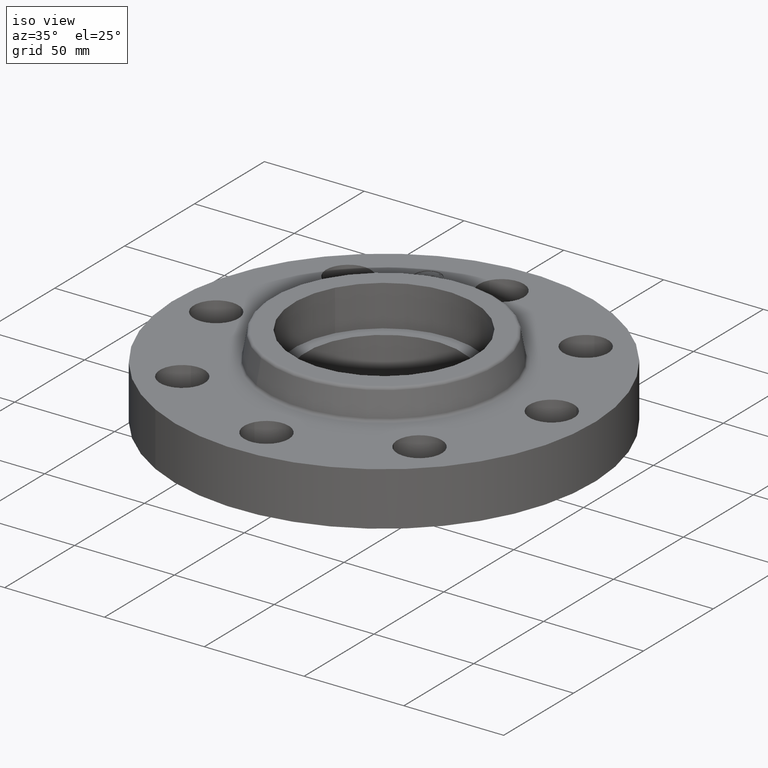
[diagram: clean part render]
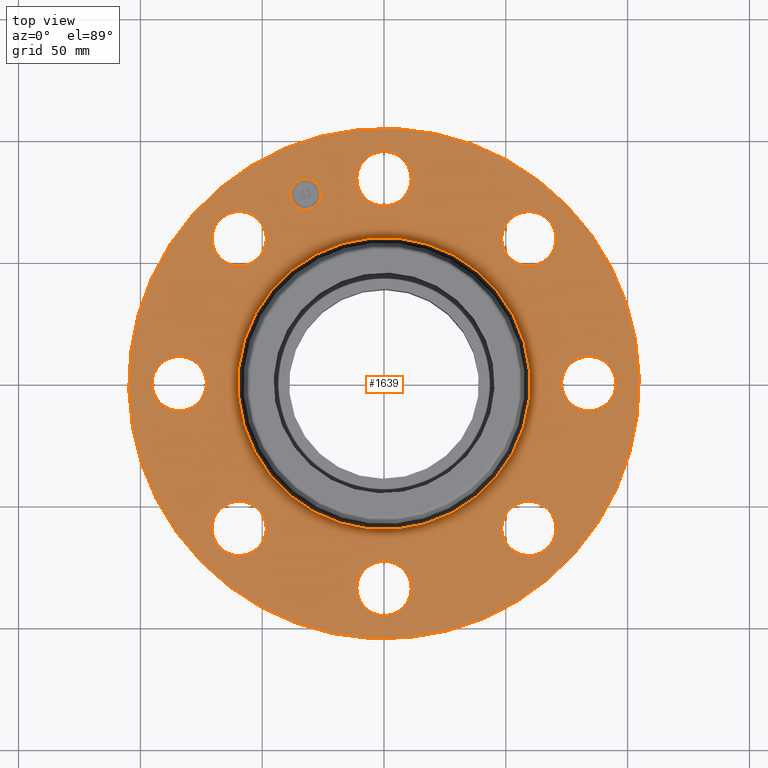
[diagram: tour spotlight — one face highlighted and labeled with its STEP entity id]
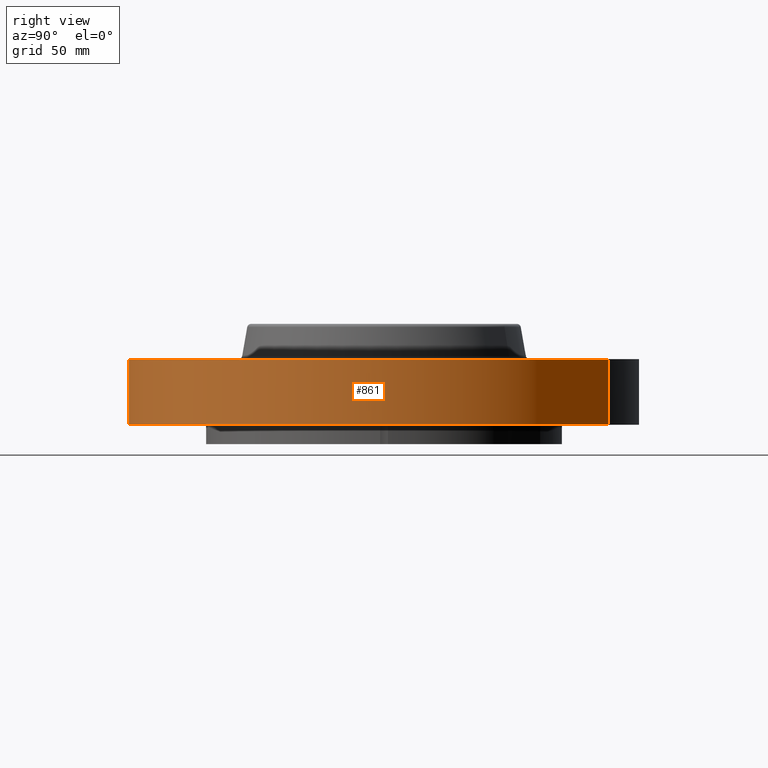
[diagram: tour spotlight — one face highlighted and labeled with its STEP entity id]
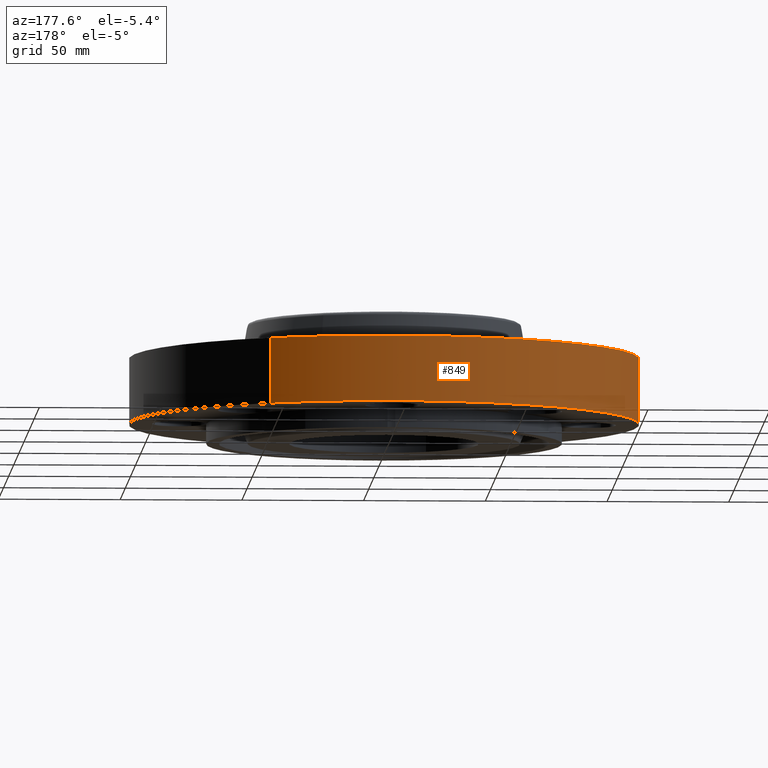
[diagram: tour spotlight — one face highlighted and labeled with its STEP entity id]
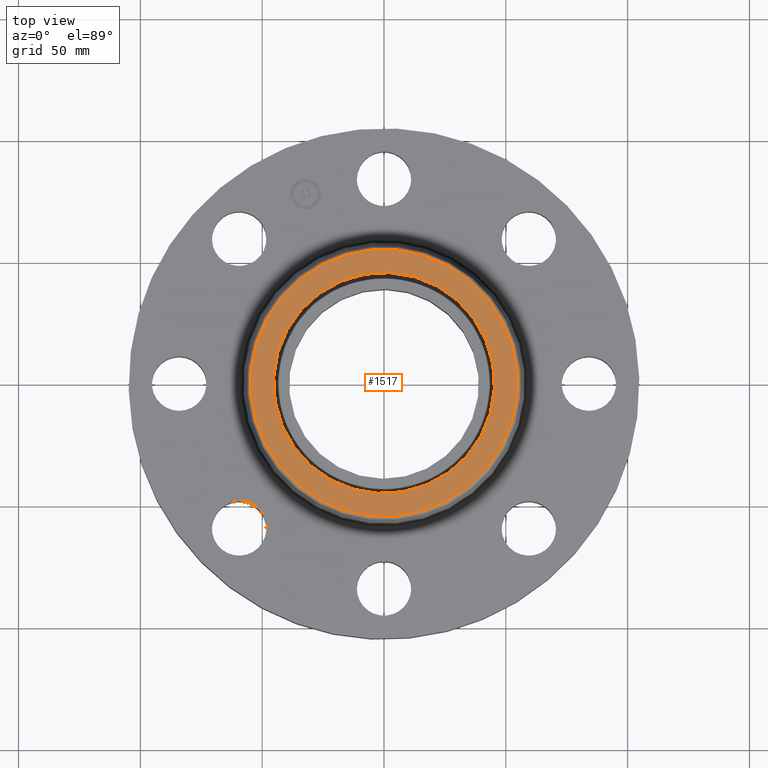
[diagram: tour spotlight — one face highlighted and labeled with its STEP entity id]
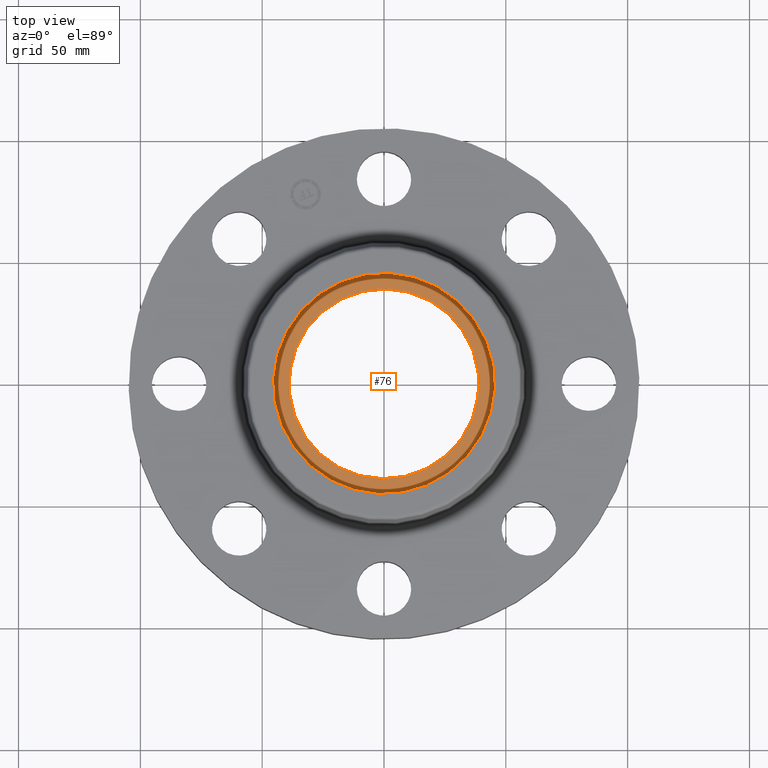
[diagram: tour spotlight — one face highlighted and labeled with its STEP entity id]
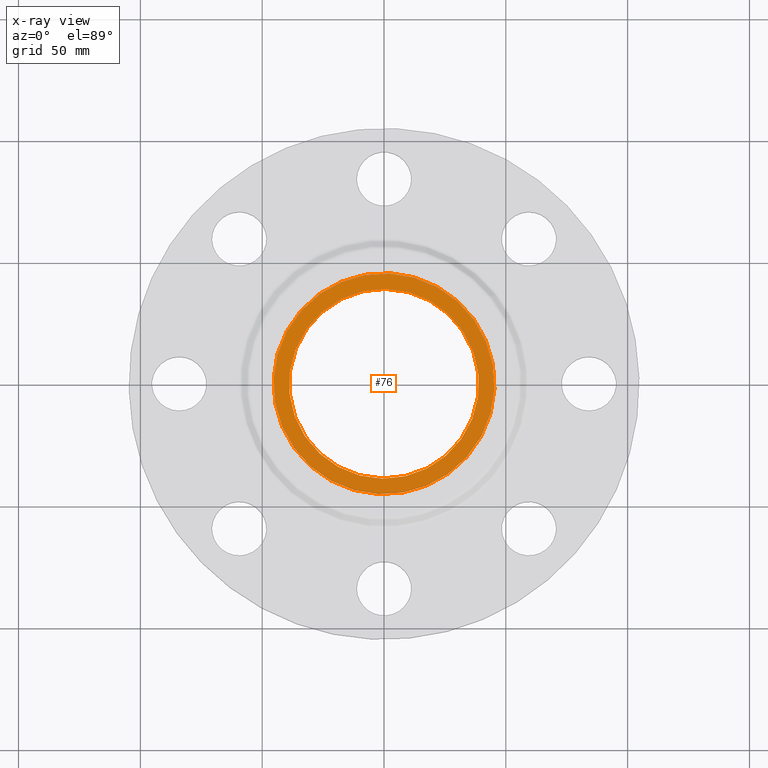
[diagram: x-ray of the same camera — body ghosted, this tour face saturated]
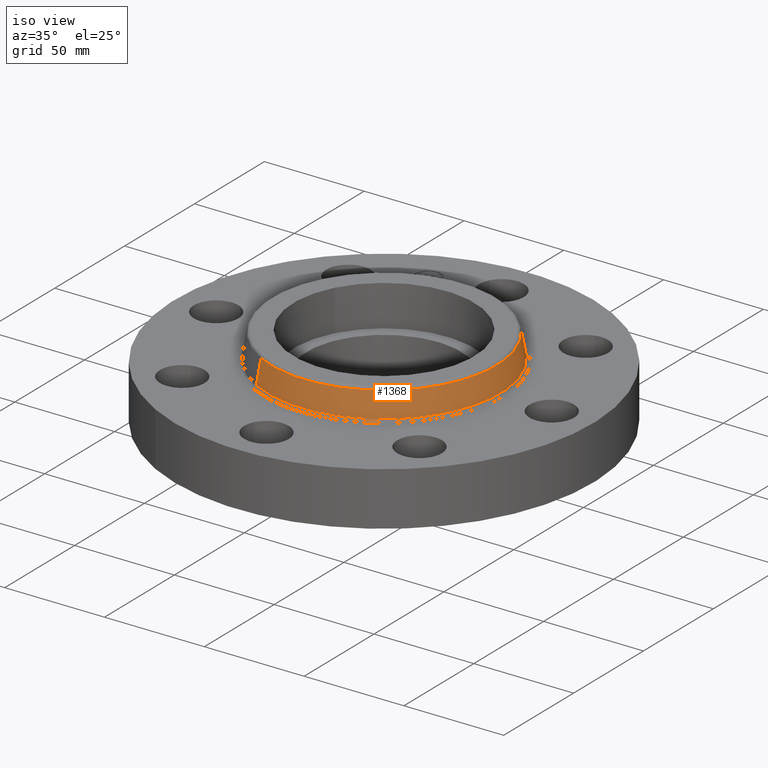
[diagram: tour spotlight — one face highlighted and labeled with its STEP entity id]
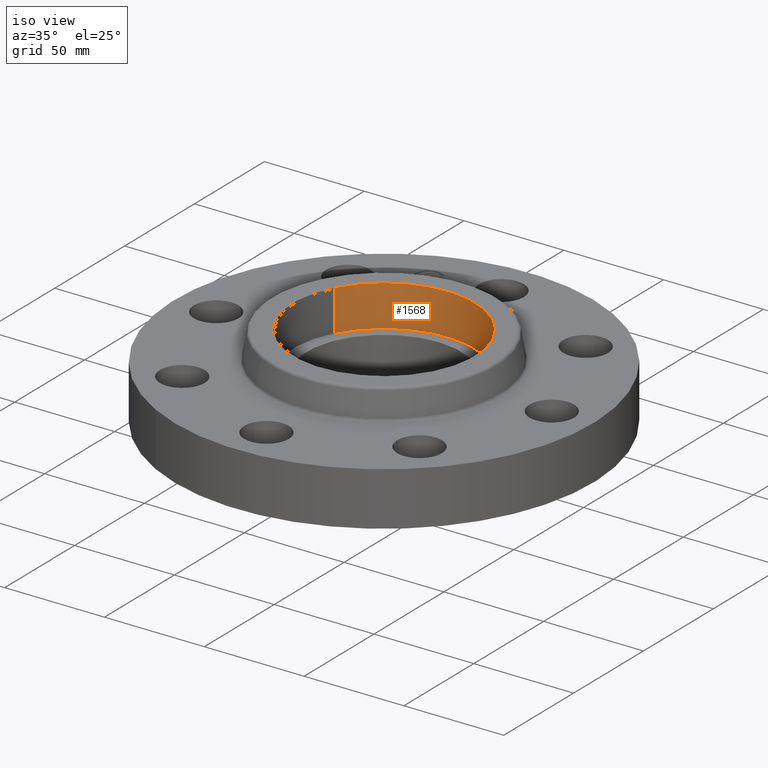
[diagram: tour spotlight — one face highlighted and labeled with its STEP entity id]
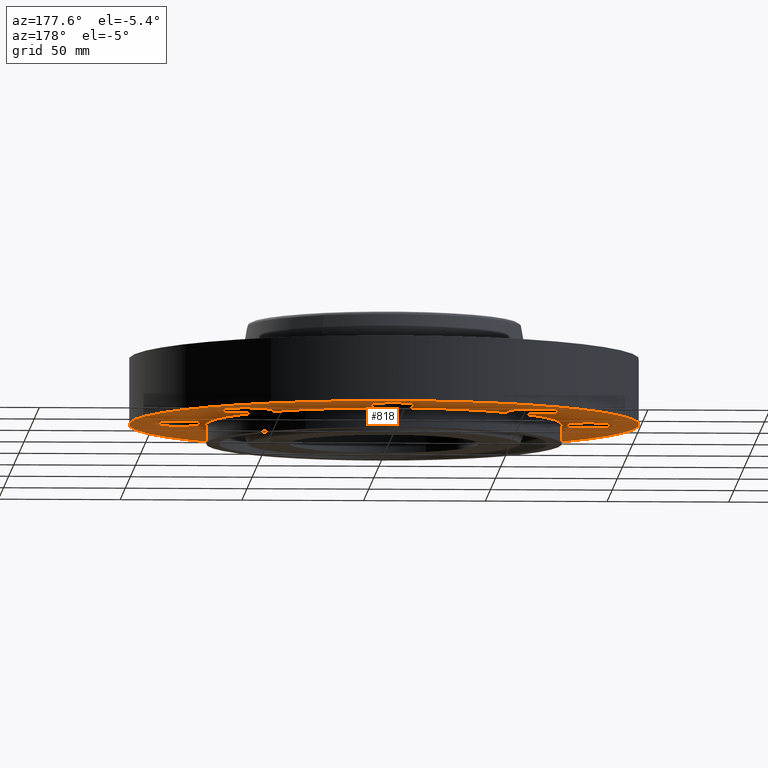
[diagram: tour spotlight — one face highlighted and labeled with its STEP entity id]
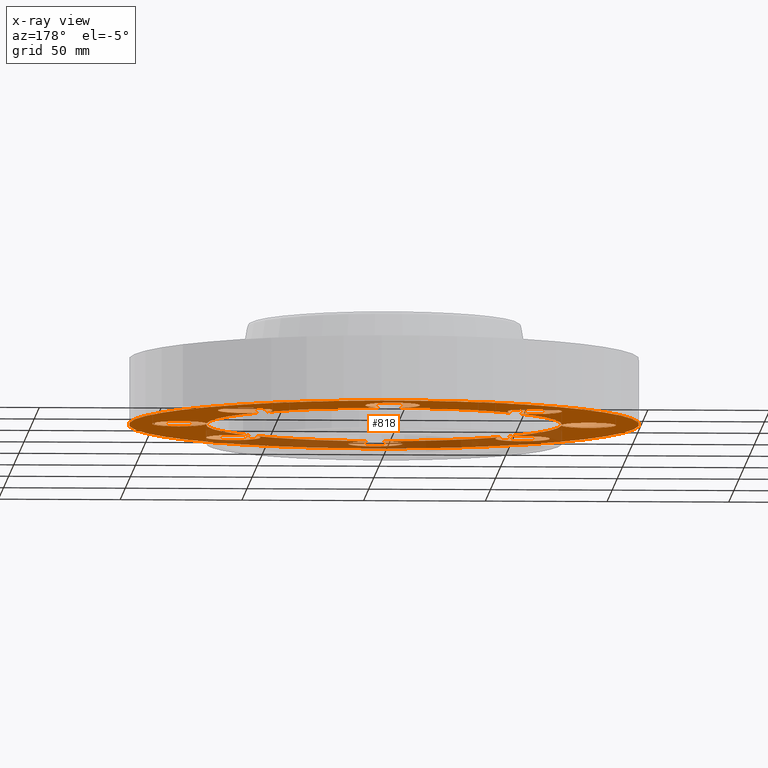
[diagram: x-ray of the same camera — body ghosted, this tour face saturated]
A machine part: a face-by-face anatomy tour. The part has 438 B-rep faces; the first image is the clean iso view, then the 8 largest visible faces are spotlighted one at a time (largest first), each with its STEP entity span.

Face 1 — top view, entity #1639. In plain terms, the highlighted planar face has unit normal (0, 0, -1).
Definition (entity closure, byte-faithful):
#833=AXIS2_PLACEMENT_3D('Circle Axis2P3D',#831,#832,$) ;
#852=AXIS2_PLACEMENT_3D('Circle Axis2P3D',#850,#851,$) ;
#883=AXIS2_PLACEMENT_3D('Circle Axis2P3D',#881,#882,$) ;
#914=AXIS2_PLACEMENT_3D('Circle Axis2P3D',#912,#913,$) ;
#945=AXIS2_PLACEMENT_3D('Circle Axis2P3D',#943,#944,$) ;
#976=AXIS2_PLACEMENT_3D('Circle Axis2P3D',#974,#975,$) ;
#1007=AXIS2_PLACEMENT_3D('Circle Axis2P3D',#1005,#1006,$) ;
#1038=AXIS2_PLACEMENT_3D('Circle Axis2P3D',#1036,#1037,$) ;
#1069=AXIS2_PLACEMENT_3D('Circle Axis2P3D',#1067,#1068,$) ;
#1100=AXIS2_PLACEMENT_3D('Circle Axis2P3D',#1098,#1099,$) ;
#1112=AXIS2_PLACEMENT_3D('Circle Axis2P3D',#1110,#1111,$) ;
#1128=AXIS2_PLACEMENT_3D('Circle Axis2P3D',#1126,#1127,$) ;
#1144=AXIS2_PLACEMENT_3D('Circle Axis2P3D',#1142,#1143,$) ;
#1160=AXIS2_PLACEMENT_3D('Circle Axis2P3D',#1158,#1159,$) ;
#1176=AXIS2_PLACEMENT_3D('Circle Axis2P3D',#1174,#1175,$) ;
#1192=AXIS2_PLACEMENT_3D('Circle Axis2P3D',#1190,#1191,$) ;
#1208=AXIS2_PLACEMENT_3D('Circle Axis2P3D',#1206,#1207,$) ;
#1224=AXIS2_PLACEMENT_3D('Circle Axis2P3D',#1222,#1223,$) ;
#1245=AXIS2_PLACEMENT_3D('Circle Axis2P3D',#1243,#1244,$) ;
#1280=AXIS2_PLACEMENT_3D('Circle Axis2P3D',#1278,#1279,$) ;
#1579=AXIS2_PLACEMENT_3D('Plane Axis2P3D',#1576,#1577,#1578) ;
#1623=AXIS2_PLACEMENT_3D('Circle Axis2P3D',#1621,#1622,$) ;
#1632=AXIS2_PLACEMENT_3D('Circle Axis2P3D',#1630,#1631,$) ;
#828=CARTESIAN_POINT('Vertex',(-1.97763034675,-3.62002806781,1.06)) ;
#831=CARTESIAN_POINT('Axis2P3D Location',(0.,0.,1.06)) ;
#835=CARTESIAN_POINT('Vertex',(1.97763034675,3.62002806781,1.06)) ;
#850=CARTESIAN_POINT('Axis2P3D Location',(0.,0.,1.06)) ;
#871=CARTESIAN_POINT('Vertex',(2.76272528293,-2.21664605203,1.06)) ;
#878=CARTESIAN_POINT('Vertex',(1.91832160854,-2.46440083944,1.06)) ;
#881=CARTESIAN_POINT('Axis2P3D Location',(2.34052344574,-2.34052344574,1.06)) ;
#902=CARTESIAN_POINT('Vertex',(0.386136327233,-3.520947237,1.06)) ;
#909=CARTESIAN_POINT('Vertex',(-0.386136327233,-3.09905276303,1.06)) ;
#912=CARTESIAN_POINT('Axis2P3D Location',(4.05358090519E-016,-3.31000000001,1.06)) ;
#933=CARTESIAN_POINT('Vertex',(-2.21664605203,-2.76272528293,1.06)) ;
#940=CARTESIAN_POINT('Vertex',(-2.46440083944,-1.91832160854,1.06)) ;
#943=CARTESIAN_POINT('Axis2P3D Location',(-2.34052344574,-2.34052344574,1.06)) ;
#964=CARTESIAN_POINT('Vertex',(-3.520947237,-0.386136327233,1.06)) ;
#971=CARTESIAN_POINT('Vertex',(-3.09905276303,0.386136327233,1.06)) ;
#974=CARTESIAN_POINT('Axis2P3D Location',(-3.31000000001,-6.08037135779E-016,1.06)) ;
#995=CARTESIAN_POINT('Vertex',(-2.76272528293,2.21664605203,1.06)) ;
#1002=CARTESIAN_POINT('Vertex',(-1.91832160854,2.46440083944,1.06)) ;
#1005=CARTESIAN_POINT('Axis2P3D Location',(-2.34052344574,2.34052344574,1.06)) ;
#1026=CARTESIAN_POINT('Vertex',(-0.386136327233,3.520947237,1.06)) ;
#1033=CARTESIAN_POINT('Vertex',(0.386136327233,3.09905276303,1.06)) ;
#1036=CARTESIAN_POINT('Axis2P3D Location',(0.,3.31000000001,1.06)) ;
#1057=CARTESIAN_POINT('Vertex',(2.21664605203,2.76272528293,1.06)) ;
#1064=CARTESIAN_POINT('Vertex',(2.46440083944,1.91832160854,1.06)) ;
#1067=CARTESIAN_POINT('Axis2P3D Location',(2.34052344574,2.34052344574,1.06)) ;
#1088=CARTESIAN_POINT('Vertex',(3.520947237,0.386136327233,1.06)) ;
#1095=CARTESIAN_POINT('Vertex',(3.09905276303,-0.386136327233,1.06)) ;
#1098=CARTESIAN_POINT('Axis2P3D Location',(3.31000000001,2.0267904526E-016,1.06)) ;
#1110=CARTESIAN_POINT('Axis2P3D Location',(2.34052344574,2.34052344574,1.06)) ;
#1126=CARTESIAN_POINT('Axis2P3D Location',(0.,3.31000000001,1.06)) ;
#1142=CARTESIAN_POINT('Axis2P3D Location',(-2.34052344574,2.34052344574,1.06)) ;
#1158=CARTESIAN_POINT('Axis2P3D Location',(-3.31000000001,-6.08037135779E-016,1.06)) ;
#1174=CARTESIAN_POINT('Axis2P3D Location',(-2.34052344574,-2.34052344574,1.06)) ;
#1190=CARTESIAN_POINT('Axis2P3D Location',(4.05358090519E-016,-3.31000000001,1.06)) ;
#1206=CARTESIAN_POINT('Axis2P3D Location',(2.34052344574,-2.34052344574,1.06)) ;
#1222=CARTESIAN_POINT('Axis2P3D Location',(3.31000000001,2.0267904526E-016,1.06)) ;
#1243=CARTESIAN_POINT('Axis2P3D Location',(0.,0.,1.06)) ;
#1247=CARTESIAN_POINT('Vertex',(1.13161014174,2.07139847022,1.06)) ;
#1249=CARTESIAN_POINT('Vertex',(-1.13161014174,-2.07139847022,1.06)) ;
#1278=CARTESIAN_POINT('Axis2P3D Location',(0.,0.,1.06)) ;
#1576=CARTESIAN_POINT('Axis2P3D Location',(0.,4.12500000002,1.06)) ;
#1621=CARTESIAN_POINT('Axis2P3D Location',(-1.26668216113,3.05804125262,1.06)) ;
#1625=CARTESIAN_POINT('Vertex',(-1.49534234543,2.96332710311,1.06)) ;
#1627=CARTESIAN_POINT('Vertex',(-1.03802197684,3.15275540214,1.06)) ;
#1630=CARTESIAN_POINT('Axis2P3D Location',(-1.26668216113,3.05804125262,1.06)) ;
#832=DIRECTION('Axis2P3D Direction',(0.,0.,-0.0393700787402)) ;
#851=DIRECTION('Axis2P3D Direction',(0.,0.,-0.0393700787402)) ;
#882=DIRECTION('Axis2P3D Direction',(-0.,0.,-0.0393700787402)) ;
#913=DIRECTION('Axis2P3D Direction',(-0.,0.,-0.0393700787402)) ;
#944=DIRECTION('Axis2P3D Direction',(0.,0.,-0.0393700787402)) ;
#975=DIRECTION('Axis2P3D Direction',(0.,0.,-0.0393700787402)) ;
#1006=DIRECTION('Axis2P3D Direction',(0.,0.,-0.0393700787402)) ;
#1037=DIRECTION('Axis2P3D Direction',(0.,-0.,-0.0393700787402)) ;
#1068=DIRECTION('Axis2P3D Direction',(0.,-0.,-0.0393700787402)) ;
#1099=DIRECTION('Axis2P3D Direction',(0.,-0.,-0.0393700787402)) ;
#1111=DIRECTION('Axis2P3D Direction',(0.,-0.,-0.0393700787402)) ;
#1127=DIRECTION('Axis2P3D Direction',(0.,-0.,-0.0393700787402)) ;
#1143=DIRECTION('Axis2P3D Direction',(0.,0.,-0.0393700787402)) ;
#1159=DIRECTION('Axis2P3D Direction',(0.,0.,-0.0393700787402)) ;
#1175=DIRECTION('Axis2P3D Direction',(0.,0.,-0.0393700787402)) ;
#1191=DIRECTION('Axis2P3D Direction',(-0.,0.,-0.0393700787402)) ;
#1207=DIRECTION('Axis2P3D Direction',(-0.,0.,-0.0393700787402)) ;
#1223=DIRECTION('Axis2P3D Direction',(0.,-0.,-0.0393700787402)) ;
#1244=DIRECTION('Axis2P3D Direction',(0.,0.,-0.0393700787402)) ;
#1279=DIRECTION('Axis2P3D Direction',(0.,0.,-0.0393700787402)) ;
#1577=DIRECTION('Axis2P3D Direction',(0.,0.,-0.0393700787402)) ;
#1578=DIRECTION('Axis2P3D XDirection',(0.0393700787402,0.,0.)) ;
#1622=DIRECTION('Axis2P3D Direction',(0.,0.,-0.0393700787402)) ;
#1631=DIRECTION('Axis2P3D Direction',(0.,0.,-0.0393700787402)) ;
#1582=ORIENTED_EDGE('',*,*,#854,.F.) ;
#1583=ORIENTED_EDGE('',*,*,#837,.F.) ;
#1586=ORIENTED_EDGE('',*,*,#1040,.T.) ;
#1587=ORIENTED_EDGE('',*,*,#1130,.T.) ;
#1590=ORIENTED_EDGE('',*,*,#1282,.T.) ;
#1591=ORIENTED_EDGE('',*,*,#1251,.T.) ;
#1594=ORIENTED_EDGE('',*,*,#1114,.T.) ;
#1595=ORIENTED_EDGE('',*,*,#1071,.T.) ;
#1598=ORIENTED_EDGE('',*,*,#1226,.T.) ;
#1599=ORIENTED_EDGE('',*,*,#1102,.T.) ;
#1602=ORIENTED_EDGE('',*,*,#1210,.T.) ;
#1603=ORIENTED_EDGE('',*,*,#885,.T.) ;
#1606=ORIENTED_EDGE('',*,*,#1194,.T.) ;
#1607=ORIENTED_EDGE('',*,*,#916,.T.) ;
#1610=ORIENTED_EDGE('',*,*,#1178,.T.) ;
#1611=ORIENTED_EDGE('',*,*,#947,.T.) ;
#1614=ORIENTED_EDGE('',*,*,#1162,.T.) ;
#1615=ORIENTED_EDGE('',*,*,#978,.T.) ;
#1618=ORIENTED_EDGE('',*,*,#1146,.T.) ;
#1619=ORIENTED_EDGE('',*,*,#1009,.T.) ;
#1636=ORIENTED_EDGE('',*,*,#1629,.T.) ;
#1637=ORIENTED_EDGE('',*,*,#1634,.T.) ;
#1588=FACE_BOUND('',#1585,.T.) ;
#1592=FACE_BOUND('',#1589,.T.) ;
#1596=FACE_BOUND('',#1593,.T.) ;
#1600=FACE_BOUND('',#1597,.T.) ;
#1604=FACE_BOUND('',#1601,.T.) ;
#1608=FACE_BOUND('',#1605,.T.) ;
#1612=FACE_BOUND('',#1609,.T.) ;
#1616=FACE_BOUND('',#1613,.T.) ;
#1620=FACE_BOUND('',#1617,.T.) ;
#1638=FACE_BOUND('',#1635,.T.) ;
#1639=ADVANCED_FACE('PartBody',(#1584,#1588,#1592,#1596,#1600,#1604,#1608,#1612,#1616,#1620,#1638),#1580,.F.) ;
#834=CIRCLE('generated circle',#833,4.12500000002) ;
#853=CIRCLE('generated circle',#852,4.12500000002) ;
#884=CIRCLE('generated circle',#883,0.440000000002) ;
#915=CIRCLE('generated circle',#914,0.440000000002) ;
#946=CIRCLE('generated circle',#945,0.440000000002) ;
#977=CIRCLE('generated circle',#976,0.440000000002) ;
#1008=CIRCLE('generated circle',#1007,0.440000000002) ;
#1039=CIRCLE('generated circle',#1038,0.440000000002) ;
#1070=CIRCLE('generated circle',#1069,0.440000000002) ;
#1101=CIRCLE('generated circle',#1100,0.440000000002) ;
#1113=CIRCLE('generated circle',#1112,0.440000000002) ;
#1129=CIRCLE('generated circle',#1128,0.440000000002) ;
#1145=CIRCLE('generated circle',#1144,0.440000000002) ;
#1161=CIRCLE('generated circle',#1160,0.440000000002) ;
#1177=CIRCLE('generated circle',#1176,0.440000000002) ;
#1193=CIRCLE('generated circle',#1192,0.440000000002) ;
#1209=CIRCLE('generated circle',#1208,0.440000000002) ;
#1225=CIRCLE('generated circle',#1224,0.440000000002) ;
#1246=CIRCLE('generated circle',#1245,2.36034597788) ;
#1281=CIRCLE('generated circle',#1280,2.36034597788) ;
#1624=CIRCLE('generated circle',#1623,0.247500000001) ;
#1633=CIRCLE('generated circle',#1632,0.247500000001) ;
#837=EDGE_CURVE('',#829,#836,#834,.T.) ;
#854=EDGE_CURVE('',#836,#829,#853,.T.) ;
#885=EDGE_CURVE('',#872,#879,#884,.T.) ;
#916=EDGE_CURVE('',#903,#910,#915,.T.) ;
#947=EDGE_CURVE('',#934,#941,#946,.T.) ;
#978=EDGE_CURVE('',#965,#972,#977,.T.) ;
#1009=EDGE_CURVE('',#996,#1003,#1008,.T.) ;
#1040=EDGE_CURVE('',#1027,#1034,#1039,.T.) ;
#1071=EDGE_CURVE('',#1058,#1065,#1070,.T.) ;
#1102=EDGE_CURVE('',#1089,#1096,#1101,.T.) ;
#1114=EDGE_CURVE('',#1065,#1058,#1113,.T.) ;
#1130=EDGE_CURVE('',#1034,#1027,#1129,.T.) ;
#1146=EDGE_CURVE('',#1003,#996,#1145,.T.) ;
#1162=EDGE_CURVE('',#972,#965,#1161,.T.) ;
#1178=EDGE_CURVE('',#941,#934,#1177,.T.) ;
#1194=EDGE_CURVE('',#910,#903,#1193,.T.) ;
#1210=EDGE_CURVE('',#879,#872,#1209,.T.) ;
#1226=EDGE_CURVE('',#1096,#1089,#1225,.T.) ;
#1251=EDGE_CURVE('',#1248,#1250,#1246,.T.) ;
#1282=EDGE_CURVE('',#1250,#1248,#1281,.T.) ;
#1629=EDGE_CURVE('',#1626,#1628,#1624,.T.) ;
#1634=EDGE_CURVE('',#1628,#1626,#1633,.T.) ;
#1581=EDGE_LOOP('',(#1582,#1583)) ;
#1585=EDGE_LOOP('',(#1586,#1587)) ;
#1589=EDGE_LOOP('',(#1590,#1591)) ;
#1593=EDGE_LOOP('',(#1594,#1595)) ;
#1597=EDGE_LOOP('',(#1598,#1599)) ;
#1601=EDGE_LOOP('',(#1602,#1603)) ;
#1605=EDGE_LOOP('',(#1606,#1607)) ;
#1609=EDGE_LOOP('',(#1610,#1611)) ;
#1613=EDGE_LOOP('',(#1614,#1615)) ;
#1617=EDGE_LOOP('',(#1618,#1619)) ;
#1635=EDGE_LOOP('',(#1636,#1637)) ;
#1584=FACE_OUTER_BOUND('',#1581,.T.) ;
#1580=PLANE('',#1579) ;
#829=VERTEX_POINT('',#828) ;
#836=VERTEX_POINT('',#835) ;
#872=VERTEX_POINT('',#871) ;
#879=VERTEX_POINT('',#878) ;
#903=VERTEX_POINT('',#902) ;
#910=VERTEX_POINT('',#909) ;
#934=VERTEX_POINT('',#933) ;
#941=VERTEX_POINT('',#940) ;
#965=VERTEX_POINT('',#964) ;
#972=VERTEX_POINT('',#971) ;
#996=VERTEX_POINT('',#995) ;
#1003=VERTEX_POINT('',#1002) ;
#1027=VERTEX_POINT('',#1026) ;
#1034=VERTEX_POINT('',#1033) ;
#1058=VERTEX_POINT('',#1057) ;
#1065=VERTEX_POINT('',#1064) ;
#1089=VERTEX_POINT('',#1088) ;
#1096=VERTEX_POINT('',#1095) ;
#1248=VERTEX_POINT('',#1247) ;
#1250=VERTEX_POINT('',#1249) ;
#1626=VERTEX_POINT('',#1625) ;
#1628=VERTEX_POINT('',#1627) ;

Face 2 — right view, entity #861. In plain terms, the highlighted cylindrical surface (partial cylindrical patch) has radius 104.775 mm, axis along (0, 0, -1).
Definition (entity closure, byte-faithful):
#623=AXIS2_PLACEMENT_3D('Circle Axis2P3D',#621,#622,$) ;
#822=AXIS2_PLACEMENT_3D('Cylinder Axis2P3D',#819,#820,#821) ;
#852=AXIS2_PLACEMENT_3D('Circle Axis2P3D',#850,#851,$) ;
#616=CARTESIAN_POINT('Vertex',(-1.97763034675,-3.62002806781,4.19611851827E-016)) ;
#618=CARTESIAN_POINT('Vertex',(1.97763034675,3.62002806781,4.19611851827E-016)) ;
#621=CARTESIAN_POINT('Axis2P3D Location',(0.,0.,0.)) ;
#819=CARTESIAN_POINT('Axis2P3D Location',(0.,0.,0.658500000003)) ;
#824=CARTESIAN_POINT('Line Origine',(-1.97763034675,-3.62002806781,0.530000000002)) ;
#828=CARTESIAN_POINT('Vertex',(-1.97763034675,-3.62002806781,1.06)) ;
#835=CARTESIAN_POINT('Vertex',(1.97763034675,3.62002806781,1.06)) ;
#838=CARTESIAN_POINT('Line Origine',(1.97763034675,3.62002806781,0.530000000002)) ;
#850=CARTESIAN_POINT('Axis2P3D Location',(0.,0.,1.06)) ;
#622=DIRECTION('Axis2P3D Direction',(0.,0.,-0.0393700787402)) ;
#820=DIRECTION('Axis2P3D Direction',(0.,0.,-0.0393700787402)) ;
#821=DIRECTION('Axis2P3D XDirection',(0.0188750212049,0.0345504945626,0.)) ;
#825=DIRECTION('Vector Direction',(0.,0.,-0.0393700787402)) ;
#839=DIRECTION('Vector Direction',(0.,0.,-0.0393700787402)) ;
#851=DIRECTION('Axis2P3D Direction',(0.,0.,-0.0393700787402)) ;
#826=VECTOR('Line Direction',#825,0.0393700787402) ;
#840=VECTOR('Line Direction',#839,0.0393700787402) ;
#856=ORIENTED_EDGE('',*,*,#625,.F.) ;
#857=ORIENTED_EDGE('',*,*,#842,.T.) ;
#858=ORIENTED_EDGE('',*,*,#854,.T.) ;
#859=ORIENTED_EDGE('',*,*,#830,.F.) ;
#861=ADVANCED_FACE('PartBody',(#860),#823,.T.) ;
#624=CIRCLE('generated circle',#623,4.12500000002) ;
#853=CIRCLE('generated circle',#852,4.12500000002) ;
#823=CYLINDRICAL_SURFACE('generated cylinder',#822,4.12500000002) ;
#625=EDGE_CURVE('',#619,#617,#624,.T.) ;
#830=EDGE_CURVE('',#617,#829,#827,.F.) ;
#842=EDGE_CURVE('',#619,#836,#841,.F.) ;
#854=EDGE_CURVE('',#836,#829,#853,.T.) ;
#855=EDGE_LOOP('',(#856,#857,#858,#859)) ;
#860=FACE_OUTER_BOUND('',#855,.T.) ;
#827=LINE('Line',#824,#826) ;
#841=LINE('Line',#838,#840) ;
#617=VERTEX_POINT('',#616) ;
#619=VERTEX_POINT('',#618) ;
#829=VERTEX_POINT('',#828) ;
#836=VERTEX_POINT('',#835) ;

Face 3 — auxiliary view, entity #849. In plain terms, the highlighted cylindrical surface (partial cylindrical patch) has radius 104.775 mm, axis along (0, 0, -1).
Definition (entity closure, byte-faithful):
#614=AXIS2_PLACEMENT_3D('Circle Axis2P3D',#612,#613,$) ;
#822=AXIS2_PLACEMENT_3D('Cylinder Axis2P3D',#819,#820,#821) ;
#833=AXIS2_PLACEMENT_3D('Circle Axis2P3D',#831,#832,$) ;
#612=CARTESIAN_POINT('Axis2P3D Location',(0.,0.,0.)) ;
#616=CARTESIAN_POINT('Vertex',(-1.97763034675,-3.62002806781,4.19611851827E-016)) ;
#618=CARTESIAN_POINT('Vertex',(1.97763034675,3.62002806781,4.19611851827E-016)) ;
#819=CARTESIAN_POINT('Axis2P3D Location',(0.,0.,0.658500000003)) ;
#824=CARTESIAN_POINT('Line Origine',(-1.97763034675,-3.62002806781,0.530000000002)) ;
#828=CARTESIAN_POINT('Vertex',(-1.97763034675,-3.62002806781,1.06)) ;
#831=CARTESIAN_POINT('Axis2P3D Location',(0.,0.,1.06)) ;
#835=CARTESIAN_POINT('Vertex',(1.97763034675,3.62002806781,1.06)) ;
#838=CARTESIAN_POINT('Line Origine',(1.97763034675,3.62002806781,0.530000000002)) ;
#613=DIRECTION('Axis2P3D Direction',(0.,0.,-0.0393700787402)) ;
#820=DIRECTION('Axis2P3D Direction',(0.,0.,-0.0393700787402)) ;
#821=DIRECTION('Axis2P3D XDirection',(0.0188750212049,0.0345504945626,0.)) ;
#825=DIRECTION('Vector Direction',(0.,0.,-0.0393700787402)) ;
#832=DIRECTION('Axis2P3D Direction',(0.,0.,-0.0393700787402)) ;
#839=DIRECTION('Vector Direction',(0.,0.,-0.0393700787402)) ;
#826=VECTOR('Line Direction',#825,0.0393700787402) ;
#840=VECTOR('Line Direction',#839,0.0393700787402) ;
#844=ORIENTED_EDGE('',*,*,#620,.F.) ;
#845=ORIENTED_EDGE('',*,*,#830,.T.) ;
#846=ORIENTED_EDGE('',*,*,#837,.T.) ;
#847=ORIENTED_EDGE('',*,*,#842,.F.) ;
#849=ADVANCED_FACE('PartBody',(#848),#823,.T.) ;
#615=CIRCLE('generated circle',#614,4.12500000002) ;
#834=CIRCLE('generated circle',#833,4.12500000002) ;
#823=CYLINDRICAL_SURFACE('generated cylinder',#822,4.12500000002) ;
#620=EDGE_CURVE('',#617,#619,#615,.T.) ;
#830=EDGE_CURVE('',#617,#829,#827,.F.) ;
#837=EDGE_CURVE('',#829,#836,#834,.T.) ;
#842=EDGE_CURVE('',#619,#836,#841,.F.) ;
#843=EDGE_LOOP('',(#844,#845,#846,#847)) ;
#848=FACE_OUTER_BOUND('',#843,.T.) ;
#827=LINE('Line',#824,#826) ;
#841=LINE('Line',#838,#840) ;
#617=VERTEX_POINT('',#616) ;
#619=VERTEX_POINT('',#618) ;
#829=VERTEX_POINT('',#828) ;
#836=VERTEX_POINT('',#835) ;

Face 4 — top view, entity #1517. In plain terms, the highlighted planar face has unit normal (0, 0, -1).
Definition (entity closure, byte-faithful):
#1438=AXIS2_PLACEMENT_3D('Circle Axis2P3D',#1436,#1437,$) ;
#1457=AXIS2_PLACEMENT_3D('Circle Axis2P3D',#1455,#1456,$) ;
#1493=AXIS2_PLACEMENT_3D('Plane Axis2P3D',#1490,#1491,#1492) ;
#1501=AXIS2_PLACEMENT_3D('Circle Axis2P3D',#1499,#1500,$) ;
#1510=AXIS2_PLACEMENT_3D('Circle Axis2P3D',#1508,#1509,$) ;
#1433=CARTESIAN_POINT('Vertex',(1.03515052174,1.89483032016,1.63000000001)) ;
#1436=CARTESIAN_POINT('Axis2P3D Location',(0.,0.,1.63000000001)) ;
#1440=CARTESIAN_POINT('Vertex',(-1.03515052174,-1.89483032016,1.63000000001)) ;
#1455=CARTESIAN_POINT('Axis2P3D Location',(0.,0.,1.63000000001)) ;
#1490=CARTESIAN_POINT('Axis2P3D Location',(0.,2.15914764313,1.63000000001)) ;
#1499=CARTESIAN_POINT('Axis2P3D Location',(6.99353086378E-017,-2.79741234551E-016,1.63000000001)) ;
#1503=CARTESIAN_POINT('Vertex',(-1.56648487298,0.855774586412,1.63000000001)) ;
#1505=CARTESIAN_POINT('Vertex',(1.56648487298,-0.855774586412,1.63000000001)) ;
#1508=CARTESIAN_POINT('Axis2P3D Location',(0.,2.79741234551E-016,1.63000000001)) ;
#1437=DIRECTION('Axis2P3D Direction',(0.,0.,-0.0393700787402)) ;
#1456=DIRECTION('Axis2P3D Direction',(0.,0.,-0.0393700787402)) ;
#1491=DIRECTION('Axis2P3D Direction',(0.,0.,-0.0393700787402)) ;
#1492=DIRECTION('Axis2P3D XDirection',(0.0393700787402,0.,0.)) ;
#1500=DIRECTION('Axis2P3D Direction',(0.,0.,-0.0393700787402)) ;
#1509=DIRECTION('Axis2P3D Direction',(0.,0.,-0.0393700787402)) ;
#1496=ORIENTED_EDGE('',*,*,#1442,.F.) ;
#1497=ORIENTED_EDGE('',*,*,#1459,.F.) ;
#1514=ORIENTED_EDGE('',*,*,#1507,.T.) ;
#1515=ORIENTED_EDGE('',*,*,#1512,.T.) ;
#1516=FACE_BOUND('',#1513,.T.) ;
#1517=ADVANCED_FACE('PartBody',(#1498,#1516),#1494,.F.) ;
#1439=CIRCLE('generated circle',#1438,2.15914764313) ;
#1458=CIRCLE('generated circle',#1457,2.15914764313) ;
#1502=CIRCLE('generated circle',#1501,1.78500000001) ;
#1511=CIRCLE('generated circle',#1510,1.78500000001) ;
#1442=EDGE_CURVE('',#1434,#1441,#1439,.T.) ;
#1459=EDGE_CURVE('',#1441,#1434,#1458,.T.) ;
#1507=EDGE_CURVE('',#1504,#1506,#1502,.T.) ;
#1512=EDGE_CURVE('',#1506,#1504,#1511,.T.) ;
#1495=EDGE_LOOP('',(#1496,#1497)) ;
#1513=EDGE_LOOP('',(#1514,#1515)) ;
#1498=FACE_OUTER_BOUND('',#1495,.T.) ;
#1494=PLANE('',#1493) ;
#1434=VERTEX_POINT('',#1433) ;
#1441=VERTEX_POINT('',#1440) ;
#1504=VERTEX_POINT('',#1503) ;
#1506=VERTEX_POINT('',#1505) ;

Face 5 — top view, entity #76. An x-ray twin of the same camera follows (body ghosted, this face saturated) — the face is partly hidden behind the body. In plain terms, the highlighted planar face has unit normal (0, 0, -1).
Definition (entity closure, byte-faithful):
#38=AXIS2_PLACEMENT_3D('Plane Axis2P3D',#35,#36,#37) ;
#42=AXIS2_PLACEMENT_3D('Circle Axis2P3D',#40,#41,$) ;
#51=AXIS2_PLACEMENT_3D('Circle Axis2P3D',#49,#50,$) ;
#60=AXIS2_PLACEMENT_3D('Circle Axis2P3D',#58,#59,$) ;
#69=AXIS2_PLACEMENT_3D('Circle Axis2P3D',#67,#68,$) ;
#35=CARTESIAN_POINT('Axis2P3D Location',(1.04902962957E-016,-3.49676543189E-016,0.820000000003)) ;
#40=CARTESIAN_POINT('Axis2P3D Location',(1.04902962957E-016,-3.49676543189E-016,0.820000000003)) ;
#44=CARTESIAN_POINT('Vertex',(-1.56648487298,0.855774586412,0.820000000003)) ;
#46=CARTESIAN_POINT('Vertex',(1.56648487298,-0.855774586412,0.820000000003)) ;
#49=CARTESIAN_POINT('Axis2P3D Location',(1.04902962957E-016,-3.49676543189E-016,0.820000000003)) ;
#58=CARTESIAN_POINT('Axis2P3D Location',(3.84644197508E-016,-3.49676543189E-017,0.820000000003)) ;
#62=CARTESIAN_POINT('Vertex',(0.735438776222,1.34621164995,0.820000000003)) ;
#64=CARTESIAN_POINT('Vertex',(-0.735438776222,-1.34621164995,0.820000000003)) ;
#67=CARTESIAN_POINT('Axis2P3D Location',(-3.49676543189E-017,-2.09805925913E-016,0.820000000003)) ;
#36=DIRECTION('Axis2P3D Direction',(0.,0.,-0.0393700787402)) ;
#37=DIRECTION('Axis2P3D XDirection',(0.0393700787402,0.,0.)) ;
#41=DIRECTION('Axis2P3D Direction',(0.,0.,-0.0393700787402)) ;
#50=DIRECTION('Axis2P3D Direction',(0.,0.,-0.0393700787402)) ;
#59=DIRECTION('Axis2P3D Direction',(0.,0.,-0.0393700787402)) ;
#68=DIRECTION('Axis2P3D Direction',(0.,0.,-0.0393700787402)) ;
#55=ORIENTED_EDGE('',*,*,#48,.F.) ;
#56=ORIENTED_EDGE('',*,*,#53,.F.) ;
#73=ORIENTED_EDGE('',*,*,#66,.T.) ;
#74=ORIENTED_EDGE('',*,*,#71,.T.) ;
#75=FACE_BOUND('',#72,.T.) ;
#76=ADVANCED_FACE('PartBody',(#57,#75),#39,.F.) ;
#43=CIRCLE('generated circle',#42,1.78500000001) ;
#52=CIRCLE('generated circle',#51,1.78500000001) ;
#61=CIRCLE('generated circle',#60,1.53400000001) ;
#70=CIRCLE('generated circle',#69,1.53400000001) ;
#48=EDGE_CURVE('',#45,#47,#43,.T.) ;
#53=EDGE_CURVE('',#47,#45,#52,.T.) ;
#66=EDGE_CURVE('',#63,#65,#61,.T.) ;
#71=EDGE_CURVE('',#65,#63,#70,.T.) ;
#54=EDGE_LOOP('',(#55,#56)) ;
#72=EDGE_LOOP('',(#73,#74)) ;
#57=FACE_OUTER_BOUND('',#54,.T.) ;
#39=PLANE('',#38) ;
#45=VERTEX_POINT('',#44) ;
#47=VERTEX_POINT('',#46) ;
#63=VERTEX_POINT('',#62) ;
#65=VERTEX_POINT('',#64) ;

Face 6 — iso view, entity #1368. In plain terms, the highlighted conical surface has half-angle 10 deg.
Definition (entity closure, byte-faithful):
#1261=AXIS2_PLACEMENT_3D('Circle Axis2P3D',#1259,#1260,$) ;
#1341=AXIS2_PLACEMENT_3D('Cone Axis2P3D',#1338,#1339,#1340) ;
#1352=AXIS2_PLACEMENT_3D('Circle Axis2P3D',#1350,#1351,$) ;
#1256=CARTESIAN_POINT('Vertex',(1.10328162249,2.01954346356,1.10958110934)) ;
#1259=CARTESIAN_POINT('Axis2P3D Location',(0.,0.,1.10958110934)) ;
#1263=CARTESIAN_POINT('Vertex',(-1.10328162249,-2.01954346356,1.10958110934)) ;
#1338=CARTESIAN_POINT('Axis2P3D Location',(0.,0.,1.58041889067)) ;
#1343=CARTESIAN_POINT('Line Origine',(1.08338033174,1.98311439519,1.34500000001)) ;
#1347=CARTESIAN_POINT('Vertex',(1.06347904098,1.94668532681,1.58041889067)) ;
#1350=CARTESIAN_POINT('Axis2P3D Location',(0.,0.,1.58041889067)) ;
#1354=CARTESIAN_POINT('Vertex',(-1.06347904098,-1.94668532681,1.58041889067)) ;
#1357=CARTESIAN_POINT('Line Origine',(-1.08338033174,-1.98311439519,1.34500000001)) ;
#1260=DIRECTION('Axis2P3D Direction',(0.,0.,-0.0393700787402)) ;
#1339=DIRECTION('Axis2P3D Direction',(0.,0.,-0.0393700787402)) ;
#1340=DIRECTION('Axis2P3D XDirection',(-0.0188750212049,-0.0345504945626,0.)) ;
#1344=DIRECTION('Vector Direction',(0.00327761303565,0.00599963041829,-0.03877195878)) ;
#1351=DIRECTION('Axis2P3D Direction',(0.,0.,-0.0393700787402)) ;
#1358=DIRECTION('Vector Direction',(-0.00327761303565,-0.00599963041829,-0.03877195878)) ;
#1345=VECTOR('Line Direction',#1344,0.0393700787402) ;
#1359=VECTOR('Line Direction',#1358,0.0393700787402) ;
#1363=ORIENTED_EDGE('',*,*,#1265,.F.) ;
#1364=ORIENTED_EDGE('',*,*,#1349,.T.) ;
#1365=ORIENTED_EDGE('',*,*,#1356,.T.) ;
#1366=ORIENTED_EDGE('',*,*,#1361,.F.) ;
#1368=ADVANCED_FACE('PartBody',(#1367),#1342,.T.) ;
#1262=CIRCLE('generated circle',#1261,2.3012575127) ;
#1353=CIRCLE('generated circle',#1352,2.21823610832) ;
#1342=CONICAL_SURFACE('Cone',#1341,2.21823610832,0.174532925199) ;
#1265=EDGE_CURVE('',#1257,#1264,#1262,.T.) ;
#1349=EDGE_CURVE('',#1257,#1348,#1346,.F.) ;
#1356=EDGE_CURVE('',#1348,#1355,#1353,.T.) ;
#1361=EDGE_CURVE('',#1264,#1355,#1360,.F.) ;
#1362=EDGE_LOOP('',(#1363,#1364,#1365,#1366)) ;
#1367=FACE_OUTER_BOUND('',#1362,.T.) ;
#1346=LINE('Line',#1343,#1345) ;
#1360=LINE('Line',#1357,#1359) ;
#1257=VERTEX_POINT('',#1256) ;
#1264=VERTEX_POINT('',#1263) ;
#1348=VERTEX_POINT('',#1347) ;
#1355=VERTEX_POINT('',#1354) ;

Face 7 — iso view, entity #1568. In plain terms, the highlighted cylindrical surface (partial cylindrical patch) has radius 45.339 mm, axis along (0, 0, -1).
Definition (entity closure, byte-faithful):
#42=AXIS2_PLACEMENT_3D('Circle Axis2P3D',#40,#41,$) ;
#1501=AXIS2_PLACEMENT_3D('Circle Axis2P3D',#1499,#1500,$) ;
#1550=AXIS2_PLACEMENT_3D('Cylinder Axis2P3D',#1547,#1548,#1549) ;
#40=CARTESIAN_POINT('Axis2P3D Location',(1.04902962957E-016,-3.49676543189E-016,0.820000000003)) ;
#44=CARTESIAN_POINT('Vertex',(-1.56648487298,0.855774586412,0.820000000003)) ;
#46=CARTESIAN_POINT('Vertex',(1.56648487298,-0.855774586412,0.820000000003)) ;
#1499=CARTESIAN_POINT('Axis2P3D Location',(6.99353086378E-017,-2.79741234551E-016,1.63000000001)) ;
#1503=CARTESIAN_POINT('Vertex',(-1.56648487298,0.855774586412,1.63000000001)) ;
#1505=CARTESIAN_POINT('Vertex',(1.56648487298,-0.855774586412,1.63000000001)) ;
#1547=CARTESIAN_POINT('Axis2P3D Location',(1.04902962957E-016,-3.49676543189E-016,1.62606299213)) ;
#1552=CARTESIAN_POINT('Line Origine',(-1.56648487298,0.855774586412,1.225)) ;
#1557=CARTESIAN_POINT('Line Origine',(1.56648487298,-0.855774586412,1.225)) ;
#41=DIRECTION('Axis2P3D Direction',(0.,0.,-0.0393700787402)) ;
#1500=DIRECTION('Axis2P3D Direction',(0.,0.,-0.0393700787402)) ;
#1548=DIRECTION('Axis2P3D Direction',(0.,0.,-0.0393700787402)) ;
#1549=DIRECTION('Axis2P3D XDirection',(0.0345504945626,-0.0188750212049,0.)) ;
#1553=DIRECTION('Vector Direction',(0.,0.,-0.0393700787402)) ;
#1558=DIRECTION('Vector Direction',(0.,0.,-0.0393700787402)) ;
#1554=VECTOR('Line Direction',#1553,0.0393700787402) ;
#1559=VECTOR('Line Direction',#1558,0.0393700787402) ;
#1563=ORIENTED_EDGE('',*,*,#1507,.F.) ;
#1564=ORIENTED_EDGE('',*,*,#1556,.F.) ;
#1565=ORIENTED_EDGE('',*,*,#48,.T.) ;
#1566=ORIENTED_EDGE('',*,*,#1561,.T.) ;
#1568=ADVANCED_FACE('PartBody',(#1567),#1551,.F.) ;
#43=CIRCLE('generated circle',#42,1.78500000001) ;
#1502=CIRCLE('generated circle',#1501,1.78500000001) ;
#1551=CYLINDRICAL_SURFACE('generated cylinder',#1550,1.78500000001) ;
#48=EDGE_CURVE('',#45,#47,#43,.T.) ;
#1507=EDGE_CURVE('',#1504,#1506,#1502,.T.) ;
#1556=EDGE_CURVE('',#45,#1504,#1555,.F.) ;
#1561=EDGE_CURVE('',#47,#1506,#1560,.F.) ;
#1562=EDGE_LOOP('',(#1563,#1564,#1565,#1566)) ;
#1567=FACE_OUTER_BOUND('',#1562,.T.) ;
#1555=LINE('Line',#1552,#1554) ;
#1560=LINE('Line',#1557,#1559) ;
#45=VERTEX_POINT('',#44) ;
#47=VERTEX_POINT('',#46) ;
#1504=VERTEX_POINT('',#1503) ;
#1506=VERTEX_POINT('',#1505) ;

Face 8 — auxiliary view, entity #818. An x-ray twin of the same camera follows (body ghosted, this face saturated) — the face is partly hidden behind the body. In plain terms, the highlighted planar face has unit normal (0, 0, -1).
Definition (entity closure, byte-faithful):
#363=AXIS2_PLACEMENT_3D('Circle Axis2P3D',#361,#362,$) ;
#403=AXIS2_PLACEMENT_3D('Circle Axis2P3D',#401,#402,$) ;
#422=AXIS2_PLACEMENT_3D('Circle Axis2P3D',#420,#421,$) ;
#441=AXIS2_PLACEMENT_3D('Circle Axis2P3D',#439,#440,$) ;
#467=AXIS2_PLACEMENT_3D('Circle Axis2P3D',#465,#466,$) ;
#500=AXIS2_PLACEMENT_3D('Circle Axis2P3D',#498,#499,$) ;
#519=AXIS2_PLACEMENT_3D('Circle Axis2P3D',#517,#518,$) ;
#538=AXIS2_PLACEMENT_3D('Circle Axis2P3D',#536,#537,$) ;
#564=AXIS2_PLACEMENT_3D('Circle Axis2P3D',#562,#563,$) ;
#590=AXIS2_PLACEMENT_3D('Circle Axis2P3D',#588,#589,$) ;
#610=AXIS2_PLACEMENT_3D('Plane Axis2P3D',#607,#608,#609) ;
#614=AXIS2_PLACEMENT_3D('Circle Axis2P3D',#612,#613,$) ;
#623=AXIS2_PLACEMENT_3D('Circle Axis2P3D',#621,#622,$) ;
#632=AXIS2_PLACEMENT_3D('Circle Axis2P3D',#630,#631,$) ;
#639=AXIS2_PLACEMENT_3D('Circle Axis2P3D',#637,#638,$) ;
#646=AXIS2_PLACEMENT_3D('Circle Axis2P3D',#644,#645,$) ;
#651=AXIS2_PLACEMENT_3D('Circle Axis2P3D',#649,#650,$) ;
#658=AXIS2_PLACEMENT_3D('Circle Axis2P3D',#656,#657,$) ;
#665=AXIS2_PLACEMENT_3D('Circle Axis2P3D',#663,#664,$) ;
#670=AXIS2_PLACEMENT_3D('Circle Axis2P3D',#668,#669,$) ;
#677=AXIS2_PLACEMENT_3D('Circle Axis2P3D',#675,#676,$) ;
#684=AXIS2_PLACEMENT_3D('Circle Axis2P3D',#682,#683,$) ;
#689=AXIS2_PLACEMENT_3D('Circle Axis2P3D',#687,#688,$) ;
#696=AXIS2_PLACEMENT_3D('Circle Axis2P3D',#694,#695,$) ;
#703=AXIS2_PLACEMENT_3D('Circle Axis2P3D',#701,#702,$) ;
#708=AXIS2_PLACEMENT_3D('Circle Axis2P3D',#706,#707,$) ;
#715=AXIS2_PLACEMENT_3D('Circle Axis2P3D',#713,#714,$) ;
#722=AXIS2_PLACEMENT_3D('Circle Axis2P3D',#720,#721,$) ;
#727=AXIS2_PLACEMENT_3D('Circle Axis2P3D',#725,#726,$) ;
#734=AXIS2_PLACEMENT_3D('Circle Axis2P3D',#732,#733,$) ;
#741=AXIS2_PLACEMENT_3D('Circle Axis2P3D',#739,#740,$) ;
#746=AXIS2_PLACEMENT_3D('Circle Axis2P3D',#744,#745,$) ;
#753=AXIS2_PLACEMENT_3D('Circle Axis2P3D',#751,#752,$) ;
#760=AXIS2_PLACEMENT_3D('Circle Axis2P3D',#758,#759,$) ;
#765=AXIS2_PLACEMENT_3D('Circle Axis2P3D',#763,#764,$) ;
#772=AXIS2_PLACEMENT_3D('Circle Axis2P3D',#770,#771,$) ;
#779=AXIS2_PLACEMENT_3D('Circle Axis2P3D',#777,#778,$) ;
#361=CARTESIAN_POINT('Axis2P3D Location',(0.,0.,2.79741234551E-016)) ;
#365=CARTESIAN_POINT('Vertex',(2.07605138692,1.98887798493,2.79741234551E-016)) ;
#367=CARTESIAN_POINT('Vertex',(2.87433912388,0.0616409036851,2.79741234551E-016)) ;
#391=CARTESIAN_POINT('Vertex',(2.07605138692,-1.98887798493,2.79741234551E-016)) ;
#398=CARTESIAN_POINT('Vertex',(2.87433912388,-0.0616409036851,2.79741234551E-016)) ;
#401=CARTESIAN_POINT('Axis2P3D Location',(0.,0.,2.79741234551E-016)) ;
#417=CARTESIAN_POINT('Vertex',(1.98887798493,-2.07605138692,2.79741234551E-016)) ;
#420=CARTESIAN_POINT('Axis2P3D Location',(0.,0.,2.79741234551E-016)) ;
#424=CARTESIAN_POINT('Vertex',(0.0616409036851,-2.87433912388,2.79741234551E-016)) ;
#439=CARTESIAN_POINT('Axis2P3D Location',(0.,0.,2.79741234551E-016)) ;
#443=CARTESIAN_POINT('Vertex',(-0.0616409036851,-2.87433912388,2.79741234551E-016)) ;
#445=CARTESIAN_POINT('Vertex',(-1.37834842349,-2.52304986544,2.79741234551E-016)) ;
#465=CARTESIAN_POINT('Axis2P3D Location',(0.,0.,2.79741234551E-016)) ;
#469=CARTESIAN_POINT('Vertex',(-1.98887798493,-2.07605138692,2.79741234551E-016)) ;
#488=CARTESIAN_POINT('Vertex',(-2.87433912388,-0.0616409036851,2.79741234551E-016)) ;
#495=CARTESIAN_POINT('Vertex',(-2.07605138692,-1.98887798493,2.79741234551E-016)) ;
#498=CARTESIAN_POINT('Axis2P3D Location',(0.,0.,2.79741234551E-016)) ;
#514=CARTESIAN_POINT('Vertex',(-2.87433912388,0.0616409036851,2.79741234551E-016)) ;
#517=CARTESIAN_POINT('Axis2P3D Location',(0.,0.,2.79741234551E-016)) ;
#521=CARTESIAN_POINT('Vertex',(-2.07605138692,1.98887798493,2.79741234551E-016)) ;
#536=CARTESIAN_POINT('Axis2P3D Location',(0.,0.,2.79741234551E-016)) ;
#540=CARTESIAN_POINT('Vertex',(-1.98887798493,2.07605138692,2.79741234551E-016)) ;
#542=CARTESIAN_POINT('Vertex',(-0.0616409036851,2.87433912388,2.79741234551E-016)) ;
#562=CARTESIAN_POINT('Axis2P3D Location',(0.,0.,2.79741234551E-016)) ;
#566=CARTESIAN_POINT('Vertex',(0.0616409036851,2.87433912388,2.79741234551E-016)) ;
#568=CARTESIAN_POINT('Vertex',(1.37834842349,2.52304986544,2.79741234551E-016)) ;
#588=CARTESIAN_POINT('Axis2P3D Location',(0.,0.,2.79741234551E-016)) ;
#592=CARTESIAN_POINT('Vertex',(1.98887798493,2.07605138692,2.79741234551E-016)) ;
#607=CARTESIAN_POINT('Axis2P3D Location',(0.,2.87500000001,0.)) ;
#612=CARTESIAN_POINT('Axis2P3D Location',(0.,0.,0.)) ;
#616=CARTESIAN_POINT('Vertex',(-1.97763034675,-3.62002806781,4.19611851827E-016)) ;
#618=CARTESIAN_POINT('Vertex',(1.97763034675,3.62002806781,4.19611851827E-016)) ;
#621=CARTESIAN_POINT('Axis2P3D Location',(0.,0.,0.)) ;
#630=CARTESIAN_POINT('Axis2P3D Location',(3.31000000001,0.,0.)) ;
#634=CARTESIAN_POINT('Vertex',(3.09905276303,-0.386136327233,-1.39870617276E-016)) ;
#637=CARTESIAN_POINT('Axis2P3D Location',(3.31000000001,0.,0.)) ;
#641=CARTESIAN_POINT('Vertex',(3.520947237,0.386136327233,0.)) ;
#644=CARTESIAN_POINT('Axis2P3D Location',(3.31000000001,0.,0.)) ;
#649=CARTESIAN_POINT('Axis2P3D Location',(2.34052344574,2.34052344574,0.)) ;
#653=CARTESIAN_POINT('Vertex',(2.46440083944,1.91832160854,-1.39870617276E-016)) ;
#656=CARTESIAN_POINT('Axis2P3D Location',(2.34052344574,2.34052344574,0.)) ;
#660=CARTESIAN_POINT('Vertex',(2.21664605203,2.76272528293,0.)) ;
#663=CARTESIAN_POINT('Axis2P3D Location',(2.34052344574,2.34052344574,0.)) ;
#668=CARTESIAN_POINT('Axis2P3D Location',(-8.74191357973E-017,3.31000000001,0.)) ;
#672=CARTESIAN_POINT('Vertex',(0.386136327233,3.09905276303,-1.39870617276E-016)) ;
#675=CARTESIAN_POINT('Axis2P3D Location',(8.74191357973E-017,3.31000000001,0.)) ;
#679=CARTESIAN_POINT('Vertex',(-0.386136327233,3.520947237,-1.39870617276E-016)) ;
#682=CARTESIAN_POINT('Axis2P3D Location',(-8.74191357973E-017,3.31000000001,0.)) ;
#687=CARTESIAN_POINT('Axis2P3D Location',(-2.34052344574,2.34052344574,0.)) ;
#691=CARTESIAN_POINT('Vertex',(-1.91832160854,2.46440083944,-1.39870617276E-016)) ;
#694=CARTESIAN_POINT('Axis2P3D Location',(-2.34052344574,2.34052344574,0.)) ;
#698=CARTESIAN_POINT('Vertex',(-2.76272528293,2.21664605203,0.)) ;
#701=CARTESIAN_POINT('Axis2P3D Location',(-2.34052344574,2.34052344574,0.)) ;
#706=CARTESIAN_POINT('Axis2P3D Location',(-3.31000000001,-5.59482469102E-016,0.)) ;
#710=CARTESIAN_POINT('Vertex',(-3.09905276303,0.386136327233,-1.39870617276E-016)) ;
#713=CARTESIAN_POINT('Axis2P3D Location',(-3.31000000001,-5.59482469102E-016,0.)) ;
#717=CARTESIAN_POINT('Vertex',(-3.520947237,-0.386136327233,0.)) ;
#720=CARTESIAN_POINT('Axis2P3D Location',(-3.31000000001,-5.59482469102E-016,0.)) ;
#725=CARTESIAN_POINT('Axis2P3D Location',(-2.34052344574,-2.34052344574,0.)) ;
#729=CARTESIAN_POINT('Vertex',(-2.46440083944,-1.91832160854,-1.39870617276E-016)) ;
#732=CARTESIAN_POINT('Axis2P3D Location',(-2.34052344574,-2.34052344574,0.)) ;
#736=CARTESIAN_POINT('Vertex',(-2.21664605203,-2.76272528293,0.)) ;
#739=CARTESIAN_POINT('Axis2P3D Location',(-2.34052344574,-2.34052344574,0.)) ;
#744=CARTESIAN_POINT('Axis2P3D Location',(5.59482469102E-016,-3.31000000001,0.)) ;
#748=CARTESIAN_POINT('Vertex',(-0.386136327233,-3.09905276303,-1.39870617276E-016)) ;
#751=CARTESIAN_POINT('Axis2P3D Location',(4.37095678986E-016,-3.31000000001,0.)) ;
#755=CARTESIAN_POINT('Vertex',(0.386136327233,-3.520947237,0.)) ;
#758=CARTESIAN_POINT('Axis2P3D Location',(5.59482469102E-016,-3.31000000001,0.)) ;
#763=CARTESIAN_POINT('Axis2P3D Location',(2.34052344574,-2.34052344574,0.)) ;
#767=CARTESIAN_POINT('Vertex',(1.91832160854,-2.46440083944,-1.39870617276E-016)) ;
#770=CARTESIAN_POINT('Axis2P3D Location',(2.34052344574,-2.34052344574,0.)) ;
#774=CARTESIAN_POINT('Vertex',(2.76272528293,-2.21664605203,0.)) ;
#777=CARTESIAN_POINT('Axis2P3D Location',(2.34052344574,-2.34052344574,0.)) ;
#362=DIRECTION('Axis2P3D Direction',(0.,0.,-0.0393700787402)) ;
#402=DIRECTION('Axis2P3D Direction',(0.,0.,-0.0393700787402)) ;
#421=DIRECTION('Axis2P3D Direction',(0.,0.,-0.0393700787402)) ;
#440=DIRECTION('Axis2P3D Direction',(0.,0.,-0.0393700787402)) ;
#466=DIRECTION('Axis2P3D Direction',(0.,0.,-0.0393700787402)) ;
#499=DIRECTION('Axis2P3D Direction',(0.,0.,-0.0393700787402)) ;
#518=DIRECTION('Axis2P3D Direction',(0.,0.,-0.0393700787402)) ;
#537=DIRECTION('Axis2P3D Direction',(0.,0.,-0.0393700787402)) ;
#563=DIRECTION('Axis2P3D Direction',(0.,0.,-0.0393700787402)) ;
#589=DIRECTION('Axis2P3D Direction',(0.,0.,-0.0393700787402)) ;
#608=DIRECTION('Axis2P3D Direction',(0.,0.,-0.0393700787402)) ;
#609=DIRECTION('Axis2P3D XDirection',(0.0393700787402,0.,0.)) ;
#613=DIRECTION('Axis2P3D Direction',(0.,0.,-0.0393700787402)) ;
#622=DIRECTION('Axis2P3D Direction',(0.,0.,-0.0393700787402)) ;
#631=DIRECTION('Axis2P3D Direction',(0.,0.,-0.0393700787402)) ;
#638=DIRECTION('Axis2P3D Direction',(0.,0.,-0.0393700787402)) ;
#645=DIRECTION('Axis2P3D Direction',(0.,0.,-0.0393700787402)) ;
#650=DIRECTION('Axis2P3D Direction',(0.,0.,-0.0393700787402)) ;
#657=DIRECTION('Axis2P3D Direction',(0.,0.,-0.0393700787402)) ;
#664=DIRECTION('Axis2P3D Direction',(0.,0.,-0.0393700787402)) ;
#669=DIRECTION('Axis2P3D Direction',(0.,0.,-0.0393700787402)) ;
#676=DIRECTION('Axis2P3D Direction',(0.,0.,-0.0393700787402)) ;
#683=DIRECTION('Axis2P3D Direction',(0.,0.,-0.0393700787402)) ;
#688=DIRECTION('Axis2P3D Direction',(0.,0.,-0.0393700787402)) ;
#695=DIRECTION('Axis2P3D Direction',(0.,0.,-0.0393700787402)) ;
#702=DIRECTION('Axis2P3D Direction',(0.,0.,-0.0393700787402)) ;
#707=DIRECTION('Axis2P3D Direction',(0.,0.,-0.0393700787402)) ;
#714=DIRECTION('Axis2P3D Direction',(0.,0.,-0.0393700787402)) ;
#721=DIRECTION('Axis2P3D Direction',(0.,0.,-0.0393700787402)) ;
#726=DIRECTION('Axis2P3D Direction',(0.,0.,-0.0393700787402)) ;
#733=DIRECTION('Axis2P3D Direction',(0.,0.,-0.0393700787402)) ;
#740=DIRECTION('Axis2P3D Direction',(0.,0.,-0.0393700787402)) ;
#745=DIRECTION('Axis2P3D Direction',(0.,0.,-0.0393700787402)) ;
#752=DIRECTION('Axis2P3D Direction',(0.,0.,-0.0393700787402)) ;
#759=DIRECTION('Axis2P3D Direction',(0.,0.,-0.0393700787402)) ;
#764=DIRECTION('Axis2P3D Direction',(0.,0.,-0.0393700787402)) ;
#771=DIRECTION('Axis2P3D Direction',(0.,0.,-0.0393700787402)) ;
#778=DIRECTION('Axis2P3D Direction',(0.,0.,-0.0393700787402)) ;
#627=ORIENTED_EDGE('',*,*,#620,.T.) ;
#628=ORIENTED_EDGE('',*,*,#625,.T.) ;
#783=ORIENTED_EDGE('',*,*,#405,.F.) ;
#784=ORIENTED_EDGE('',*,*,#636,.F.) ;
#785=ORIENTED_EDGE('',*,*,#643,.F.) ;
#786=ORIENTED_EDGE('',*,*,#648,.F.) ;
#787=ORIENTED_EDGE('',*,*,#369,.F.) ;
#788=ORIENTED_EDGE('',*,*,#655,.F.) ;
#789=ORIENTED_EDGE('',*,*,#662,.F.) ;
#790=ORIENTED_EDGE('',*,*,#667,.F.) ;
#791=ORIENTED_EDGE('',*,*,#594,.F.) ;
#792=ORIENTED_EDGE('',*,*,#570,.F.) ;
#793=ORIENTED_EDGE('',*,*,#674,.F.) ;
#794=ORIENTED_EDGE('',*,*,#681,.F.) ;
#795=ORIENTED_EDGE('',*,*,#686,.F.) ;
#796=ORIENTED_EDGE('',*,*,#544,.F.) ;
#797=ORIENTED_EDGE('',*,*,#693,.F.) ;
#798=ORIENTED_EDGE('',*,*,#700,.F.) ;
#799=ORIENTED_EDGE('',*,*,#705,.F.) ;
#800=ORIENTED_EDGE('',*,*,#523,.F.) ;
#801=ORIENTED_EDGE('',*,*,#712,.F.) ;
#802=ORIENTED_EDGE('',*,*,#719,.F.) ;
#803=ORIENTED_EDGE('',*,*,#724,.F.) ;
#804=ORIENTED_EDGE('',*,*,#502,.F.) ;
#805=ORIENTED_EDGE('',*,*,#731,.F.) ;
#806=ORIENTED_EDGE('',*,*,#738,.F.) ;
#807=ORIENTED_EDGE('',*,*,#743,.F.) ;
#808=ORIENTED_EDGE('',*,*,#471,.F.) ;
#809=ORIENTED_EDGE('',*,*,#447,.F.) ;
#810=ORIENTED_EDGE('',*,*,#750,.F.) ;
#811=ORIENTED_EDGE('',*,*,#757,.F.) ;
#812=ORIENTED_EDGE('',*,*,#762,.F.) ;
#813=ORIENTED_EDGE('',*,*,#426,.F.) ;
#814=ORIENTED_EDGE('',*,*,#769,.F.) ;
#815=ORIENTED_EDGE('',*,*,#776,.F.) ;
#816=ORIENTED_EDGE('',*,*,#781,.F.) ;
#817=FACE_BOUND('',#782,.T.) ;
#818=ADVANCED_FACE('PartBody',(#629,#817),#611,.T.) ;
#364=CIRCLE('generated circle',#363,2.87500000001) ;
#404=CIRCLE('generated circle',#403,2.87500000001) ;
#423=CIRCLE('generated circle',#422,2.87500000001) ;
#442=CIRCLE('generated circle',#441,2.87500000001) ;
#468=CIRCLE('generated circle',#467,2.87500000001) ;
#501=CIRCLE('generated circle',#500,2.87500000001) ;
#520=CIRCLE('generated circle',#519,2.87500000001) ;
#539=CIRCLE('generated circle',#538,2.87500000001) ;
#565=CIRCLE('generated circle',#564,2.87500000001) ;
#591=CIRCLE('generated circle',#590,2.87500000001) ;
#615=CIRCLE('generated circle',#614,4.12500000002) ;
#624=CIRCLE('generated circle',#623,4.12500000002) ;
#633=CIRCLE('generated circle',#632,0.440000000002) ;
#640=CIRCLE('generated circle',#639,0.440000000002) ;
#647=CIRCLE('generated circle',#646,0.440000000002) ;
#652=CIRCLE('generated circle',#651,0.440000000002) ;
#659=CIRCLE('generated circle',#658,0.440000000002) ;
#666=CIRCLE('generated circle',#665,0.440000000002) ;
#671=CIRCLE('generated circle',#670,0.440000000002) ;
#678=CIRCLE('generated circle',#677,0.440000000002) ;
#685=CIRCLE('generated circle',#684,0.440000000002) ;
#690=CIRCLE('generated circle',#689,0.440000000002) ;
#697=CIRCLE('generated circle',#696,0.440000000002) ;
#704=CIRCLE('generated circle',#703,0.440000000002) ;
#709=CIRCLE('generated circle',#708,0.440000000002) ;
#716=CIRCLE('generated circle',#715,0.440000000002) ;
#723=CIRCLE('generated circle',#722,0.440000000002) ;
#728=CIRCLE('generated circle',#727,0.440000000002) ;
#735=CIRCLE('generated circle',#734,0.440000000002) ;
#742=CIRCLE('generated circle',#741,0.440000000002) ;
#747=CIRCLE('generated circle',#746,0.440000000002) ;
#754=CIRCLE('generated circle',#753,0.440000000002) ;
#761=CIRCLE('generated circle',#760,0.440000000002) ;
#766=CIRCLE('generated circle',#765,0.440000000002) ;
#773=CIRCLE('generated circle',#772,0.440000000002) ;
#780=CIRCLE('generated circle',#779,0.440000000002) ;
#369=EDGE_CURVE('',#366,#368,#364,.T.) ;
#405=EDGE_CURVE('',#399,#392,#404,.T.) ;
#426=EDGE_CURVE('',#418,#425,#423,.T.) ;
#447=EDGE_CURVE('',#444,#446,#442,.T.) ;
#471=EDGE_CURVE('',#446,#470,#468,.T.) ;
#502=EDGE_CURVE('',#496,#489,#501,.T.) ;
#523=EDGE_CURVE('',#515,#522,#520,.T.) ;
#544=EDGE_CURVE('',#541,#543,#539,.T.) ;
#570=EDGE_CURVE('',#567,#569,#565,.T.) ;
#594=EDGE_CURVE('',#569,#593,#591,.T.) ;
#620=EDGE_CURVE('',#617,#619,#615,.T.) ;
#625=EDGE_CURVE('',#619,#617,#624,.T.) ;
#636=EDGE_CURVE('',#635,#399,#633,.T.) ;
#643=EDGE_CURVE('',#642,#635,#640,.T.) ;
#648=EDGE_CURVE('',#368,#642,#647,.T.) ;
#655=EDGE_CURVE('',#654,#366,#652,.T.) ;
#662=EDGE_CURVE('',#661,#654,#659,.T.) ;
#667=EDGE_CURVE('',#593,#661,#666,.T.) ;
#674=EDGE_CURVE('',#673,#567,#671,.T.) ;
#681=EDGE_CURVE('',#680,#673,#678,.T.) ;
#686=EDGE_CURVE('',#543,#680,#685,.T.) ;
#693=EDGE_CURVE('',#692,#541,#690,.T.) ;
#700=EDGE_CURVE('',#699,#692,#697,.T.) ;
#705=EDGE_CURVE('',#522,#699,#704,.T.) ;
#712=EDGE_CURVE('',#711,#515,#709,.T.) ;
#719=EDGE_CURVE('',#718,#711,#716,.T.) ;
#724=EDGE_CURVE('',#489,#718,#723,.T.) ;
#731=EDGE_CURVE('',#730,#496,#728,.T.) ;
#738=EDGE_CURVE('',#737,#730,#735,.T.) ;
#743=EDGE_CURVE('',#470,#737,#742,.T.) ;
#750=EDGE_CURVE('',#749,#444,#747,.T.) ;
#757=EDGE_CURVE('',#756,#749,#754,.T.) ;
#762=EDGE_CURVE('',#425,#756,#761,.T.) ;
#769=EDGE_CURVE('',#768,#418,#766,.T.) ;
#776=EDGE_CURVE('',#775,#768,#773,.T.) ;
#781=EDGE_CURVE('',#392,#775,#780,.T.) ;
#626=EDGE_LOOP('',(#627,#628)) ;
#782=EDGE_LOOP('',(#783,#784,#785,#786,#787,#788,#789,#790,#791,#792,#793,#794,#795,#796,#797,#798,#799,#800,#801,#802,#803,#804,#805,#806,#807,#808,#809,#810,#811,#812,#813,#814,#815,#816)) ;
#629=FACE_OUTER_BOUND('',#626,.T.) ;
#611=PLANE('',#610) ;
#366=VERTEX_POINT('',#365) ;
#368=VERTEX_POINT('',#367) ;
#392=VERTEX_POINT('',#391) ;
#399=VERTEX_POINT('',#398) ;
#418=VERTEX_POINT('',#417) ;
#425=VERTEX_POINT('',#424) ;
#444=VERTEX_POINT('',#443) ;
#446=VERTEX_POINT('',#445) ;
#470=VERTEX_POINT('',#469) ;
#489=VERTEX_POINT('',#488) ;
#496=VERTEX_POINT('',#495) ;
#515=VERTEX_POINT('',#514) ;
#522=VERTEX_POINT('',#521) ;
#541=VERTEX_POINT('',#540) ;
#543=VERTEX_POINT('',#542) ;
#567=VERTEX_POINT('',#566) ;
#569=VERTEX_POINT('',#568) ;
#593=VERTEX_POINT('',#592) ;
#617=VERTEX_POINT('',#616) ;
#619=VERTEX_POINT('',#618) ;
#635=VERTEX_POINT('',#634) ;
#642=VERTEX_POINT('',#641) ;
#654=VERTEX_POINT('',#653) ;
#661=VERTEX_POINT('',#660) ;
#673=VERTEX_POINT('',#672) ;
#680=VERTEX_POINT('',#679) ;
#692=VERTEX_POINT('',#691) ;
#699=VERTEX_POINT('',#698) ;
#711=VERTEX_POINT('',#710) ;
#718=VERTEX_POINT('',#717) ;
#730=VERTEX_POINT('',#729) ;
#737=VERTEX_POINT('',#736) ;
#749=VERTEX_POINT('',#748) ;
#756=VERTEX_POINT('',#755) ;
#768=VERTEX_POINT('',#767) ;
#775=VERTEX_POINT('',#774) ;